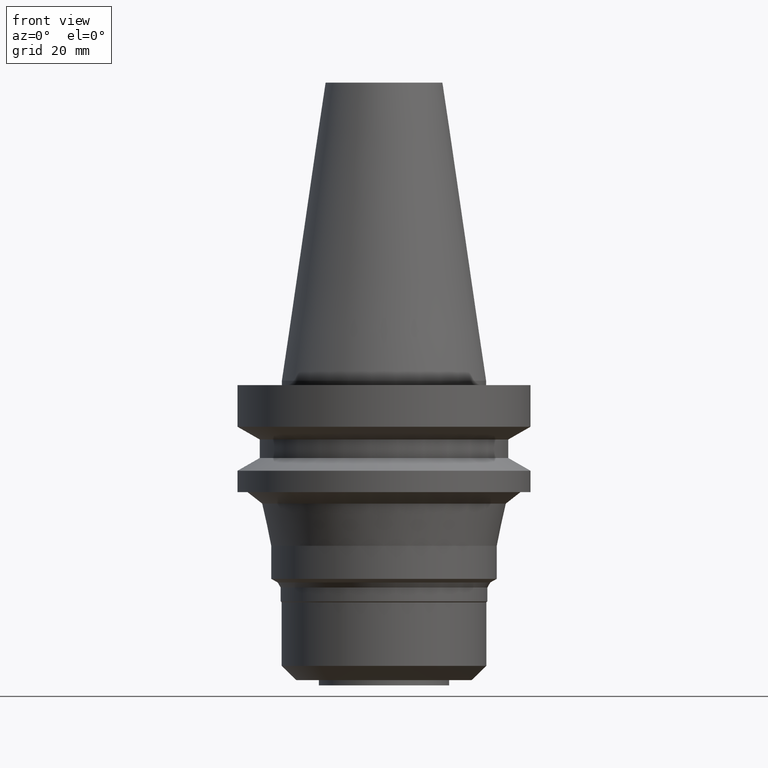
[diagram: clean part render]
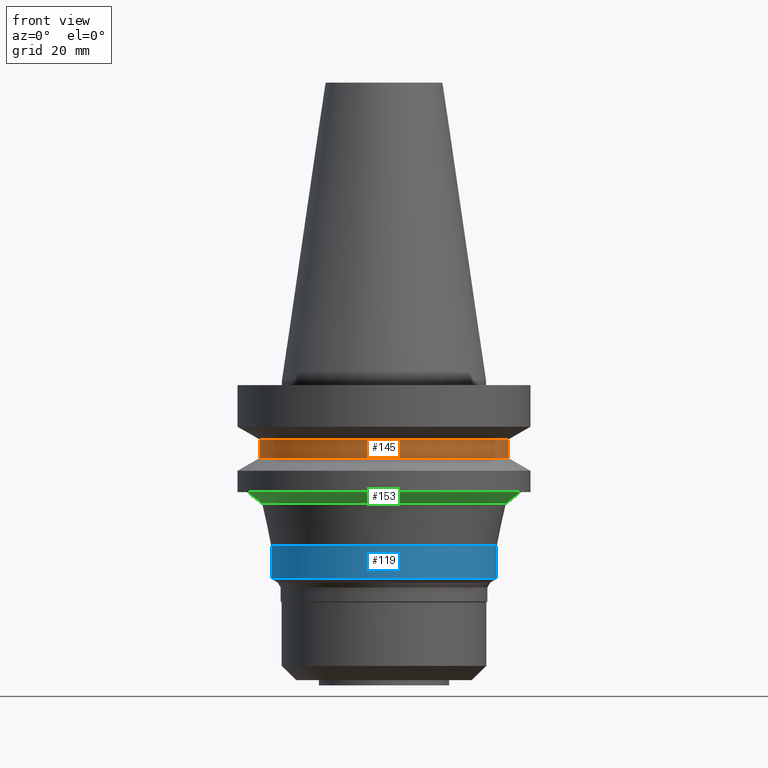
[diagram: same view with three faces highlighted in distinct colors, each labeled with its STEP entity id]
A machine part, front view with three faces highlighted in distinct colors.
Their STEP definitions:

[orange] entity #145 — the highlighted cylindrical surface (bore or boss wall) has radius 42.5 mm, axis along (0, 0, -1).
#81=EDGE_CURVE('Unnamed[1]',#216,#216,#217,.T.);
#145=ADVANCED_FACE('Unnamed[1]',(#315,#316),#317,.T.);
#150=EDGE_CURVE('Unnamed[1]',#323,#323,#324,.T.);
#216=VERTEX_POINT('',#402);
#217=CIRCLE('',#403,42.5);
#315=FACE_BOUND('',#525,.T.);
#316=FACE_BOUND('',#526,.T.);
#317=CYLINDRICAL_SURFACE('',#527,42.5);
#323=VERTEX_POINT('',#535);
#324=CIRCLE('',#536,42.5);
#402=CARTESIAN_POINT('',(1.2264915470779E-015,42.5,-20.03012702));
#403=AXIS2_PLACEMENT_3D('',#616,#617,#618);
#525=EDGE_LOOP('',(#725));
#526=EDGE_LOOP('',(#726));
#527=AXIS2_PLACEMENT_3D('',#727,#728,#729);
#535=CARTESIAN_POINT('',(1.61468902694397E-015,42.5,-26.3698729800001));
#536=AXIS2_PLACEMENT_3D('',#735,#736,#737);
#616=CARTESIAN_POINT('',(1.2264915470779E-015,2.45298309415579E-015,-20.03012702));
#617=DIRECTION('',(6.12323399573677E-017,1.22464679914763E-016,-1.0));
#618=DIRECTION('',(-1.23259516440783E-032,1.0,1.22464679914763E-016));
#725=ORIENTED_EDGE('',*,*,#150,.F.);
#726=ORIENTED_EDGE('',*,*,#81,.T.);
#727=CARTESIAN_POINT('',(1.42059028701093E-015,2.84118057402186E-015,-23.2));
#728=DIRECTION('',(6.12323399573677E-017,1.22464679914763E-016,-1.0));
#729=DIRECTION('',(-1.23259516440783E-032,1.0,1.22464679914763E-016));
#735=CARTESIAN_POINT('',(1.61468902694397E-015,3.22937805388794E-015,-26.3698729800001));
#736=DIRECTION('',(6.12323399573677E-017,1.22464679914763E-016,-1.0));
#737=DIRECTION('',(-1.23259516440783E-032,1.0,1.22464679914763E-016));

[blue] entity #119 — the highlighted cylindrical surface (bore or boss wall) has radius 38.5 mm, axis along (0, 0, -1).
#119=ADVANCED_FACE('Unnamed[1]',(#274,#275),#276,.T.);
#137=EDGE_CURVE('Unnamed[1]',#303,#303,#304,.T.);
#155=EDGE_CURVE('Unnamed[1]',#331,#331,#332,.T.);
#274=FACE_BOUND('',#473,.T.);
#275=FACE_BOUND('',#474,.T.);
#276=CYLINDRICAL_SURFACE('',#475,38.5000000000002);
#303=VERTEX_POINT('',#510);
#304=CIRCLE('',#511,38.5000000000003);
#331=VERTEX_POINT('',#545);
#332=CIRCLE('',#546,38.5000000000001);
#473=EDGE_LOOP('',(#680));
#474=EDGE_LOOP('',(#681));
#475=AXIS2_PLACEMENT_3D('',#682,#683,#684);
#510=CARTESIAN_POINT('',(4.1398818310461E-015,38.5000000000003,-67.6094010767585));
#511=AXIS2_PLACEMENT_3D('',#712,#713,#714);
#545=CARTESIAN_POINT('',(3.44738073959969E-015,38.5000000000001,-56.2999999999982));
#546=AXIS2_PLACEMENT_3D('',#744,#745,#746);
#680=ORIENTED_EDGE('',*,*,#137,.F.);
#681=ORIENTED_EDGE('',*,*,#155,.T.);
#682=CARTESIAN_POINT('',(3.79363128532289E-015,7.58726257064579E-015,-61.9547005383784));
#683=DIRECTION('',(6.12323399573677E-017,1.22464679914741E-016,-1.0));
#684=DIRECTION('',(-1.23259516440783E-032,1.0,1.22464679914741E-016));
#712=CARTESIAN_POINT('',(4.1398818310461E-015,8.27976366209219E-015,-67.6094010767585));
#713=DIRECTION('',(6.12323399573677E-017,1.22464679914741E-016,-1.0));
#714=DIRECTION('',(-1.23259516440782E-032,1.0,1.22464679914741E-016));
#744=CARTESIAN_POINT('',(3.44738073959969E-015,6.89476147919938E-015,-56.2999999999982));
#745=DIRECTION('',(6.12323399573677E-017,1.22464679914742E-016,-1.0));
#746=DIRECTION('',(-1.23259516440783E-032,1.0,1.22464679914742E-016));

[green] entity #153 — the highlighted conical surface has half-angle 51.939 deg.
#128=EDGE_CURVE('Unnamed[1]',#289,#289,#290,.T.);
#130=EDGE_CURVE('Unnamed[1]',#292,#292,#293,.T.);
#153=ADVANCED_FACE('Unnamed[1]',(#327,#328),#329,.T.);
#289=VERTEX_POINT('',#492);
#290=CIRCLE('',#493,46.6625769728258);
#292=VERTEX_POINT('',#496);
#293=CIRCLE('',#497,41.640478325698);
#327=FACE_BOUND('',#540,.T.);
#328=FACE_BOUND('',#541,.T.);
#329=CONICAL_SURFACE('',#542,44.1515276492619,0.906506497862858);
#492=CARTESIAN_POINT('',(2.32682891837996E-015,46.6625769728258,-37.9999999999998));
#493=AXIS2_PLACEMENT_3D('',#697,#698,#699);
#496=CARTESIAN_POINT('',(2.5676135627592E-015,41.640478325698,-41.9323116599312));
#497=AXIS2_PLACEMENT_3D('',#700,#701,#702);
#540=EDGE_LOOP('',(#739));
#541=EDGE_LOOP('',(#740));
#542=AXIS2_PLACEMENT_3D('',#741,#742,#743);
#697=CARTESIAN_POINT('',(2.32682891837996E-015,4.65365783675992E-015,-37.9999999999998));
#698=DIRECTION('',(6.12323399573677E-017,1.22464679914711E-016,-1.0));
#699=DIRECTION('',(-1.23259516440787E-032,1.0,1.22464679914711E-016));
#700=CARTESIAN_POINT('',(2.5676135627592E-015,5.1352271255184E-015,-41.9323116599312));
#701=DIRECTION('',(6.12323399573676E-017,1.22464679914757E-016,-1.0));
#702=DIRECTION('',(-1.23259516440795E-032,1.0,1.22464679914757E-016));
#739=ORIENTED_EDGE('',*,*,#130,.F.);
#740=ORIENTED_EDGE('',*,*,#128,.T.);
#741=CARTESIAN_POINT('',(2.44722124056958E-015,4.89444248113916E-015,-39.9661558299655));
#742=DIRECTION('',(-6.12323399573677E-017,-1.22464679914733E-016,1.0));
#743=DIRECTION('',(-1.2325951644077E-032,1.0,1.22464679914733E-016));